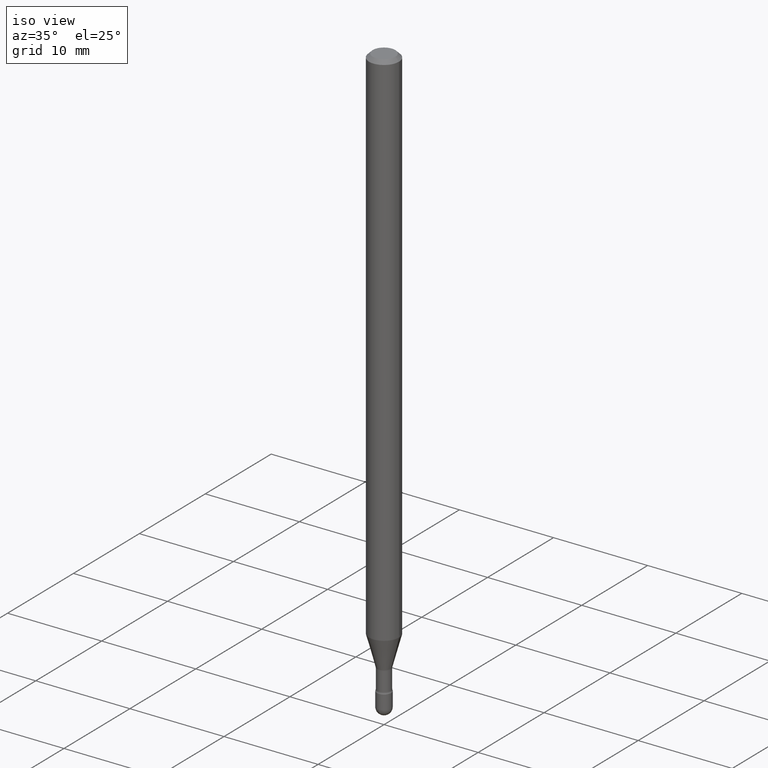
[diagram: clean part render]
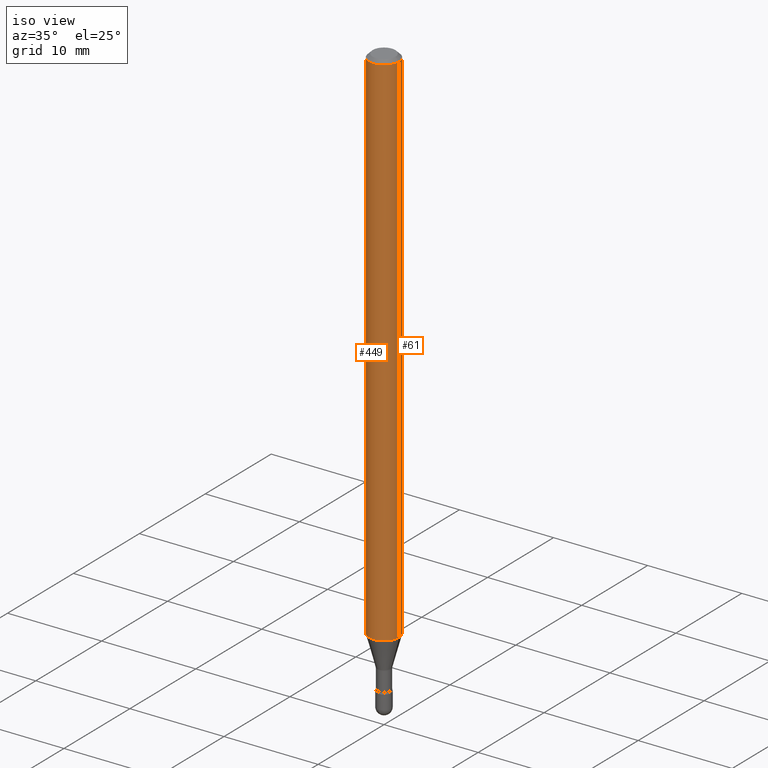
[diagram: same view with one multi-face feature highlighted, each face labeled with its STEP entity id]
A machine part, iso view. The highlighted faces form ONE feature: a constant-radius fillet chain: 2 tangent blend faces with common blend radius 1.5875 mm. The faces share edges in the B-rep.
Their STEP definitions:
[1] entity #61 (Cylinder):
#5 = DIRECTION ( 'NONE',  ( -2.445468806185136597E-29, 3.491481338843145583E-15, 1.000000000000000000 ) ) ;
#17 = CARTESIAN_POINT ( 'NONE',  ( 3.668203209277725232E-31, -5.237222008264747365E-17, -0.01500000000000008271 ) ) ;
#36 = ORIENTED_EDGE ( 'NONE', *, *, #454, .T. ) ;
#41 = CYLINDRICAL_SURFACE ( 'NONE', #408, 0.06250000000000000000 ) ;
#47 = DIRECTION ( 'NONE',  ( -2.445468806185136597E-29, 3.491481338843145583E-15, 1.000000000000000000 ) ) ;
#61 = ADVANCED_FACE ( 'NONE', ( #180 ), #41, .T. ) ;
#85 = CARTESIAN_POINT ( 'NONE',  ( -0.06250000000000000000, -7.209205265032763284E-15, -2.191990657300388001 ) ) ;
#109 = EDGE_CURVE ( 'NONE', #155, #432, #211, .T. ) ;
#139 = CARTESIAN_POINT ( 'NONE',  ( 5.360444775877352229E-29, -7.653294474882825901E-15, -2.191990657300388001 ) ) ;
#155 = VERTEX_POINT ( 'NONE', #85 ) ;
#171 = DIRECTION ( 'NONE',  ( -2.445468806185136877E-29, 3.491481338843145188E-15, 1.000000000000000000 ) ) ;
#173 = AXIS2_PLACEMENT_3D ( 'NONE', #139, #47, #309 ) ;
#180 = FACE_OUTER_BOUND ( 'NONE', #466, .T. ) ;
#209 = CARTESIAN_POINT ( 'NONE',  ( 0.06250000000000000000, -4.364351673553899931E-16, 4.780733988912490708E-16 ) ) ;
#211 = LINE ( 'NONE', #564, #482 ) ;
#233 = ORIENTED_EDGE ( 'NONE', *, *, #109, .T. ) ;
#238 = AXIS2_PLACEMENT_3D ( 'NONE', #17, #478, #431 ) ;
#243 = EDGE_CURVE ( 'NONE', #544, #281, #293, .T. ) ;
#246 = CARTESIAN_POINT ( 'NONE',  ( -1.169113584055446105E-44, 1.669184350826100908E-30, 4.780733988912460139E-16 ) ) ;
#281 = VERTEX_POINT ( 'NONE', #283 ) ;
#283 = CARTESIAN_POINT ( 'NONE',  ( 0.06250000000000000000, -4.888073874380391431E-16, -0.01500000000000008271 ) ) ;
#293 = LINE ( 'NONE', #209, #352 ) ;
#309 = DIRECTION ( 'NONE',  ( 1.000000000000000000, -6.982962677686262766E-15, 0.000000000000000000 ) ) ;
#317 = CARTESIAN_POINT ( 'NONE',  ( 0.06250000000000000000, -8.089729642238217570E-15, -2.191990657300388001 ) ) ;
#337 = CIRCLE ( 'NONE', #173, 0.06250000000000000000 ) ;
#347 = CARTESIAN_POINT ( 'NONE',  ( -0.06250000000000000000, -3.408744137632673676E-15, -0.01500000000000008271 ) ) ;
#352 = VECTOR ( 'NONE', #523, 39.37007874015748143 ) ;
#374 = ORIENTED_EDGE ( 'NONE', *, *, #243, .F. ) ;
#392 = DIRECTION ( 'NONE',  ( 1.000000000000000000, -6.982962677686266711E-15, 4.852736867747366207E-29 ) ) ;
#408 = AXIS2_PLACEMENT_3D ( 'NONE', #246, #5, #392 ) ;
#431 = DIRECTION ( 'NONE',  ( 1.000000000000000000, -6.982962677686266711E-15, 0.000000000000000000 ) ) ;
#432 = VERTEX_POINT ( 'NONE', #347 ) ;
#454 = EDGE_CURVE ( 'NONE', #544, #155, #337, .T. ) ;
#458 = EDGE_CURVE ( 'NONE', #281, #432, #492, .T. ) ;
#466 = EDGE_LOOP ( 'NONE', ( #36, #233, #517, #374 ) ) ;
#478 = DIRECTION ( 'NONE',  ( -2.445468806185136597E-29, 3.491481338843145583E-15, 1.000000000000000000 ) ) ;
#482 = VECTOR ( 'NONE', #171, 39.37007874015748143 ) ;
#492 = CIRCLE ( 'NONE', #238, 0.06250000000000000000 ) ;
#517 = ORIENTED_EDGE ( 'NONE', *, *, #458, .F. ) ;
#523 = DIRECTION ( 'NONE',  ( -2.445468806185136877E-29, 3.491481338843145188E-15, 1.000000000000000000 ) ) ;
#544 = VERTEX_POINT ( 'NONE', #317 ) ;
#564 = CARTESIAN_POINT ( 'NONE',  ( -0.06250000000000000000, 4.440892098500642925E-16, 4.780733988912429571E-16 ) ) ;
[2] entity #449 (Cylinder):
#4 = FACE_OUTER_BOUND ( 'NONE', #18, .T. ) ;
#18 = EDGE_LOOP ( 'NONE', ( #265, #274, #239, #538 ) ) ;
#74 = CIRCLE ( 'NONE', #379, 0.06250000000000000000 ) ;
#85 = CARTESIAN_POINT ( 'NONE',  ( -0.06250000000000000000, -7.209205265032763284E-15, -2.191990657300388001 ) ) ;
#97 = CYLINDRICAL_SURFACE ( 'NONE', #247, 0.06250000000000000000 ) ;
#109 = EDGE_CURVE ( 'NONE', #155, #432, #211, .T. ) ;
#129 = DIRECTION ( 'NONE',  ( 1.000000000000000000, -6.982962677686262766E-15, 0.000000000000000000 ) ) ;
#146 = DIRECTION ( 'NONE',  ( 1.000000000000000000, -6.982962677686266711E-15, 4.852736867747366207E-29 ) ) ;
#155 = VERTEX_POINT ( 'NONE', #85 ) ;
#171 = DIRECTION ( 'NONE',  ( -2.445468806185136877E-29, 3.491481338843145188E-15, 1.000000000000000000 ) ) ;
#174 = CARTESIAN_POINT ( 'NONE',  ( -1.169113584055446105E-44, 1.669184350826100908E-30, 4.780733988912460139E-16 ) ) ;
#189 = CIRCLE ( 'NONE', #473, 0.06250000000000000000 ) ;
#209 = CARTESIAN_POINT ( 'NONE',  ( 0.06250000000000000000, -4.364351673553899931E-16, 4.780733988912490708E-16 ) ) ;
#211 = LINE ( 'NONE', #564, #482 ) ;
#239 = ORIENTED_EDGE ( 'NONE', *, *, #243, .T. ) ;
#243 = EDGE_CURVE ( 'NONE', #544, #281, #293, .T. ) ;
#247 = AXIS2_PLACEMENT_3D ( 'NONE', #174, #339, #146 ) ;
#261 = DIRECTION ( 'NONE',  ( -2.445468806185136597E-29, 3.491481338843145583E-15, 1.000000000000000000 ) ) ;
#265 = ORIENTED_EDGE ( 'NONE', *, *, #109, .F. ) ;
#269 = CARTESIAN_POINT ( 'NONE',  ( 3.668203209277725232E-31, -5.237222008264747365E-17, -0.01500000000000008271 ) ) ;
#271 = DIRECTION ( 'NONE',  ( 1.000000000000000000, -6.982962677686266711E-15, 0.000000000000000000 ) ) ;
#274 = ORIENTED_EDGE ( 'NONE', *, *, #369, .T. ) ;
#281 = VERTEX_POINT ( 'NONE', #283 ) ;
#283 = CARTESIAN_POINT ( 'NONE',  ( 0.06250000000000000000, -4.888073874380391431E-16, -0.01500000000000008271 ) ) ;
#293 = LINE ( 'NONE', #209, #352 ) ;
#317 = CARTESIAN_POINT ( 'NONE',  ( 0.06250000000000000000, -8.089729642238217570E-15, -2.191990657300388001 ) ) ;
#320 = DIRECTION ( 'NONE',  ( -2.445468806185136597E-29, 3.491481338843145583E-15, 1.000000000000000000 ) ) ;
#339 = DIRECTION ( 'NONE',  ( -2.445468806185136597E-29, 3.491481338843145583E-15, 1.000000000000000000 ) ) ;
#347 = CARTESIAN_POINT ( 'NONE',  ( -0.06250000000000000000, -3.408744137632673676E-15, -0.01500000000000008271 ) ) ;
#352 = VECTOR ( 'NONE', #523, 39.37007874015748143 ) ;
#369 = EDGE_CURVE ( 'NONE', #155, #544, #189, .T. ) ;
#379 = AXIS2_PLACEMENT_3D ( 'NONE', #269, #320, #271 ) ;
#432 = VERTEX_POINT ( 'NONE', #347 ) ;
#442 = CARTESIAN_POINT ( 'NONE',  ( 5.360444775877352229E-29, -7.653294474882825901E-15, -2.191990657300388001 ) ) ;
#449 = ADVANCED_FACE ( 'NONE', ( #4 ), #97, .T. ) ;
#473 = AXIS2_PLACEMENT_3D ( 'NONE', #442, #261, #129 ) ;
#482 = VECTOR ( 'NONE', #171, 39.37007874015748143 ) ;
#499 = EDGE_CURVE ( 'NONE', #432, #281, #74, .T. ) ;
#523 = DIRECTION ( 'NONE',  ( -2.445468806185136877E-29, 3.491481338843145188E-15, 1.000000000000000000 ) ) ;
#538 = ORIENTED_EDGE ( 'NONE', *, *, #499, .F. ) ;
#544 = VERTEX_POINT ( 'NONE', #317 ) ;
#564 = CARTESIAN_POINT ( 'NONE',  ( -0.06250000000000000000, 4.440892098500642925E-16, 4.780733988912429571E-16 ) ) ;